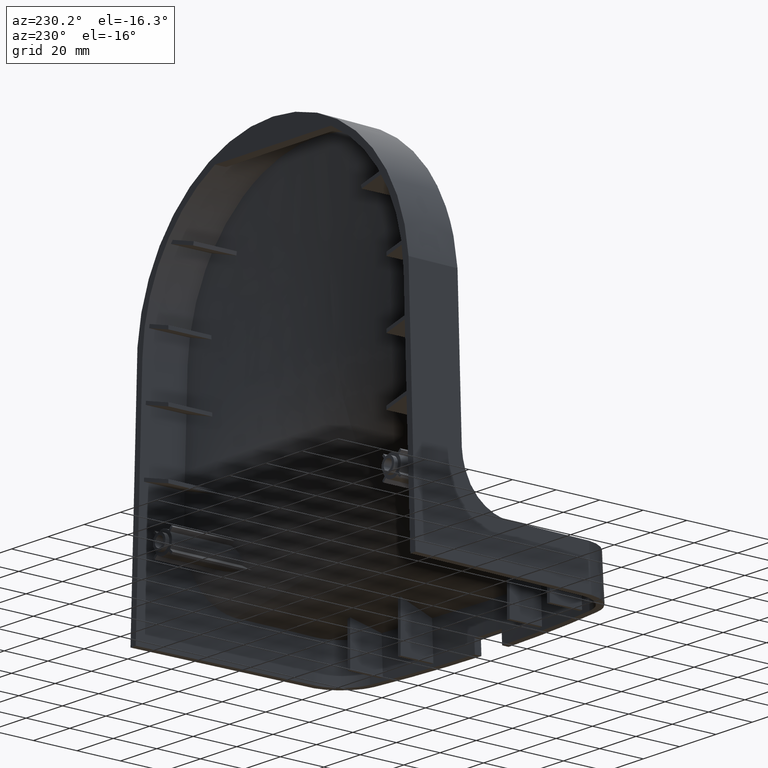
[diagram: clean part render]
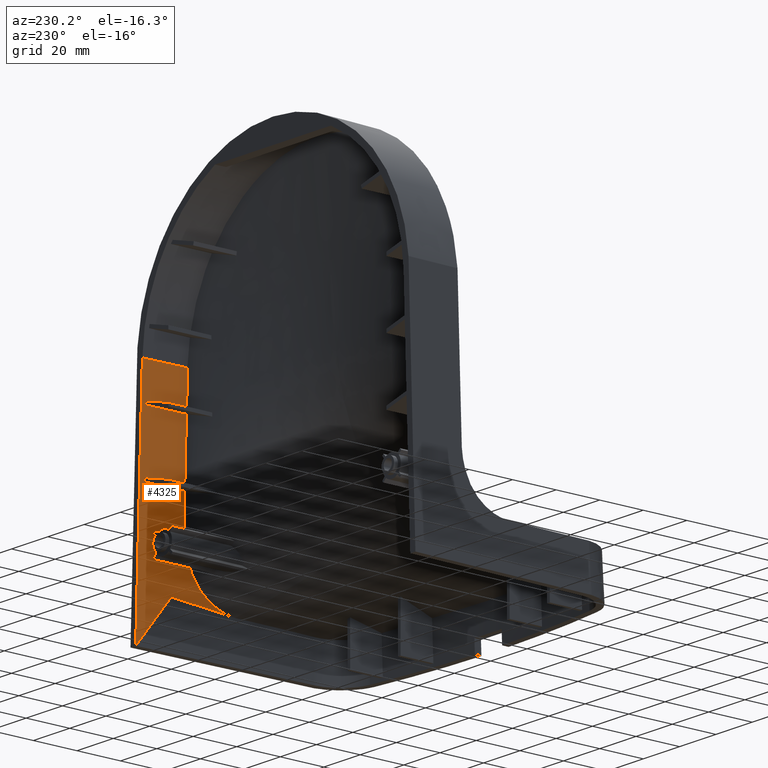
[diagram: same view with one face highlighted and labeled with its STEP entity id]
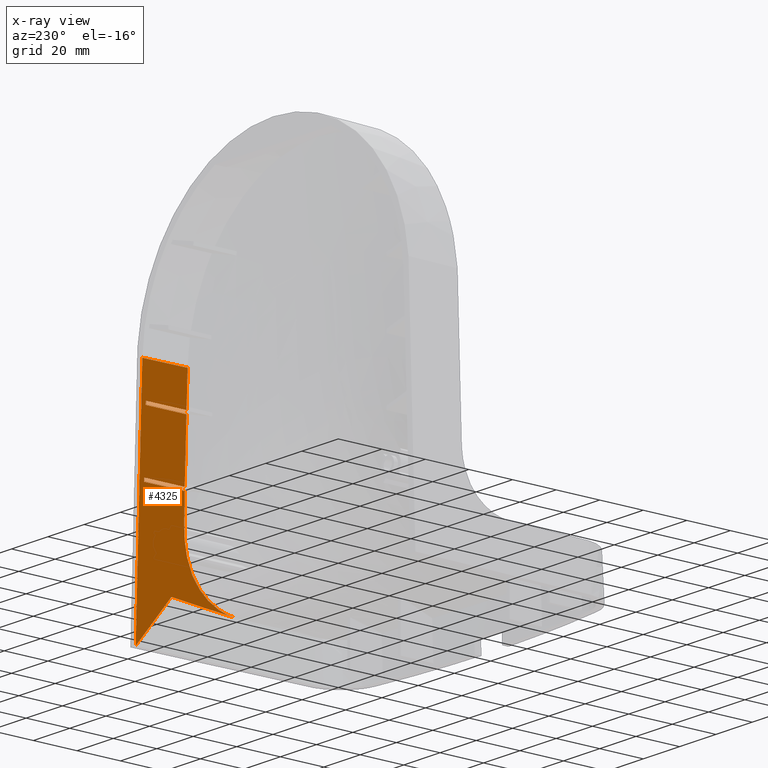
[diagram: x-ray of the same camera — body ghosted, the highlighted face saturated]
A machine part, auxiliary view. The second image highlights one B-rep face of the part: STEP entity #4325.
The next image is the same camera in x-ray: the body ghosted, the highlighted face saturated — about 0% of this face is hidden behind the body in this view.
In plain terms, the highlighted planar face has unit normal (0.999, -0.0262, 0.0349).
Its self-contained STEP definition (entity closure, byte-faithful):
#1 = CARTESIAN_POINT ( 'NONE',  ( 73.76462598726511999, -21.88662094457261986, 36.77296655947260007 ) ) ;
#349 = CARTESIAN_POINT ( 'NONE',  ( 73.20035801954453802, -20.30659595327802336, 54.11282649913669474 ) ) ;
#631 = CARTESIAN_POINT ( 'NONE',  ( 73.03038098130991784, -20.25514864893082390, 59.02270921125465009 ) ) ;
#915 = CARTESIAN_POINT ( 'NONE',  ( 73.26205397358836535, -20.33508236011132553, 52.32392751737363312 ) ) ;
#1191 = CARTESIAN_POINT ( 'NONE',  ( 73.19731675728644404, -20.30534065550454770, 54.20092586160970427 ) ) ;
#1379 = CARTESIAN_POINT ( 'NONE',  ( 72.91010439406188937, -20.23994834460830816, 62.47880377114547912 ) ) ;
#1466 = CARTESIAN_POINT ( 'NONE',  ( 72.99443650903688763, -20.24976810685724971, 60.05647996590990090 ) ) ;
#1472 = CARTESIAN_POINT ( 'NONE',  ( 71.94378532456100572, -20.28098521707368462, 90.11977045705954481 ) ) ;
#1503 = VECTOR ( 'NONE', #39204, 1000.000000000000114 ) ;
#1644 = CARTESIAN_POINT ( 'NONE',  ( 73.77776612269659040, -22.02066736879470099, 36.29610695329699865 ) ) ;
#1651 = CARTESIAN_POINT ( 'NONE',  ( 72.71241207067622270, -20.23914557905390765, 68.14057354977539660 ) ) ;
#1741 = CARTESIAN_POINT ( 'NONE',  ( 73.64356480695457208, -21.01905161975148673, 40.88048180032358658 ) ) ;
#1931 = CARTESIAN_POINT ( 'NONE',  ( 72.78684072310592512, -20.23698409484097027, 66.01083762025155011 ) ) ;
#2020 = CARTESIAN_POINT ( 'NONE',  ( 73.50125927332469189, -20.52584033895417903, 45.33512343868451211 ) ) ;
#2301 = CARTESIAN_POINT ( 'NONE',  ( 73.48806614794398229, -20.50392845531932906, 45.72826477557315883 ) ) ;
#2366 = CARTESIAN_POINT ( 'NONE',  ( 69.89653007941249996, -101.9218705068103930, 87.48839421542770367 ) ) ;
#2575 = CARTESIAN_POINT ( 'NONE',  ( 73.60345672573185993, -20.82507812437275874, 42.18484029578209515 ) ) ;
#2763 = CARTESIAN_POINT ( 'NONE',  ( 72.24872186979459343, -20.26314585780043132, 81.40091560764929568 ) ) ;
#2847 = CARTESIAN_POINT ( 'NONE',  ( 73.67604241346749916, -21.20834194243344584, 39.81718760961898340 ) ) ;
#3027 = CARTESIAN_POINT ( 'NONE',  ( 74.00869484867378389, -32.61751001371372638, 21.73211065413905274 ) ) ;
#3234 = DIRECTION ( 'NONE',  ( 0.02594961566332840142, 0.9996390702422679464, 0.006953178560886679946 ) ) ;
#3313 = CARTESIAN_POINT ( 'NONE',  ( 72.24781747678083832, -20.26317080771234913, 81.42679531454666630 ) ) ;
#3515 = VERTEX_POINT ( 'NONE', #27525 ) ;
#3517 = LINE ( 'NONE', #20764, #40371 ) ;
#3576 = VECTOR ( 'NONE', #37472, 1000.000000000000114 ) ;
#3596 = CARTESIAN_POINT ( 'NONE',  ( 72.01596535532648602, -20.27633339592315309, 88.05629518601890027 ) ) ;
#4315 = CARTESIAN_POINT ( 'NONE',  ( 73.41583272113409464, -2.000000000000000000, 61.68250591909999514 ) ) ;
#4325 = ADVANCED_FACE ( 'NONE', ( #17665 ), #22729, .F. ) ;
#5168 = CARTESIAN_POINT ( 'NONE',  ( 73.19421060364014409, -20.30406793340108962, 54.29089846319644153 ) ) ;
#5451 = CARTESIAN_POINT ( 'NONE',  ( 73.27485157129414972, -20.34171925556226412, 51.95246743405099465 ) ) ;
#5730 = CARTESIAN_POINT ( 'NONE',  ( 71.42361993796279762, -20.30922695712819959, 104.9941677681199934 ) ) ;
#5906 = CARTESIAN_POINT ( 'NONE',  ( 72.74962353694735384, -20.23781259972706081, 67.07597674266560261 ) ) ;
#5995 = CARTESIAN_POINT ( 'NONE',  ( 73.43824380662226758, -20.45079105480560244, 47.20197175662125488 ) ) ;
#6175 = CARTESIAN_POINT ( 'NONE',  ( 73.89292011228569379, -41.50630680694780494, 18.37798990210911043 ) ) ;
#6272 = CARTESIAN_POINT ( 'NONE',  ( 73.45637777163136661, -20.46544073985819168, 46.66644869149447317 ) ) ;
#6513 = CARTESIAN_POINT ( 'NONE',  ( 72.99443650903688763, -20.24976810685724971, 60.05647996590990090 ) ) ;
#6553 = CARTESIAN_POINT ( 'NONE',  ( 73.43230050937798126, -20.44624083596780650, 47.37502165385103581 ) ) ;
#6559 = EDGE_CURVE ( 'NONE', #10847, #30188, #33511, .T. ) ;
#6560 = CARTESIAN_POINT ( 'NONE',  ( 71.72350209762956297, -20.29720552120201305, 96.41568625787279245 ) ) ;
#6829 = CARTESIAN_POINT ( 'NONE',  ( 73.43495898339926953, -20.44827088207827259, 47.29773999748731939 ) ) ;
#6834 = CARTESIAN_POINT ( 'NONE',  ( 71.69536260401166317, -20.29932450110785069, 97.21990600339837840 ) ) ;
#6835 = LINE ( 'NONE', #32562, #31292 ) ;
#7006 = CARTESIAN_POINT ( 'NONE',  ( 73.83806294704270101, -44.04682706089494815, 18.07239217033429668 ) ) ;
#7086 = ORIENTED_EDGE ( 'NONE', *, *, #41415, .T. ) ;
#7102 = CARTESIAN_POINT ( 'NONE',  ( 73.46697296451998227, -20.47540119445368134, 46.35550873408246986 ) ) ;
#7153 = CARTESIAN_POINT ( 'NONE',  ( 74.49841822890140008, -15.44450179351195018, 20.59358398844534932 ) ) ;
#7293 = CARTESIAN_POINT ( 'NONE',  ( 72.25188727084227480, -20.26305755654147234, 81.31033663603768957 ) ) ;
#7376 = CARTESIAN_POINT ( 'NONE',  ( 73.71916467350908420, -21.50751412258557949, 38.36207799580297717 ) ) ;
#7649 = CARTESIAN_POINT ( 'NONE',  ( 73.71140865675423015, -21.45066211656299160, 38.62429632537202195 ) ) ;
#7678 = CARTESIAN_POINT ( 'NONE',  ( 70.87431162518140582, -101.9218705068103930, 59.48839421542759709 ) ) ;
#8215 = CARTESIAN_POINT ( 'NONE',  ( 73.69429920228978403, -21.32913373415654945, 39.20516735190700786 ) ) ;
#8493 = CARTESIAN_POINT ( 'NONE',  ( 73.73069355166789762, -21.59708619098306315, 37.96431077950914101 ) ) ;
#8778 = VECTOR ( 'NONE', #27294, 1000.000000000000000 ) ;
#9131 = CARTESIAN_POINT ( 'NONE',  ( 73.41879156698372810, -20.43586210070134257, 47.77053308976126544 ) ) ;
#9145 = DIRECTION ( 'NONE',  ( -0.03489949670250123287, 0.000000000000000000, 0.9993908270190956511 ) ) ;
#9517 = LINE ( 'NONE', #51646, #1503 ) ;
#9590 = CARTESIAN_POINT ( 'NONE',  ( 73.46818196618779950, -2.000000000000000000, 60.18341967857130470 ) ) ;
#9687 = CARTESIAN_POINT ( 'NONE',  ( 73.40498705879012675, -20.42573735812917235, 48.16373053927134151 ) ) ;
#9968 = CARTESIAN_POINT ( 'NONE',  ( 73.40641902431450205, -20.42671682323996407, 48.12487928182082442 ) ) ;
#10227 = ORIENTED_EDGE ( 'NONE', *, *, #11174, .T. ) ;
#10241 = CARTESIAN_POINT ( 'NONE',  ( 73.40299093419217513, -20.42436649571434160, 48.21812655467960695 ) ) ;
#10247 = CARTESIAN_POINT ( 'NONE',  ( 71.80538610674273059, -20.29107179109952952, 94.07543731651765029 ) ) ;
#10420 = CARTESIAN_POINT ( 'NONE',  ( 73.98379063752801699, -26.90595493924559989, 26.73078942817391379 ) ) ;
#10427 = CARTESIAN_POINT ( 'NONE',  ( 72.72079363732336788, -20.23880402355147723, 67.90081316156765467 ) ) ;
#10515 = CARTESIAN_POINT ( 'NONE',  ( 73.58440925796911358, -20.74982844515403713, 42.78716809800278043 ) ) ;
#10706 = CARTESIAN_POINT ( 'NONE',  ( 72.94225801736989467, -20.24319029239810064, 61.55561195968039812 ) ) ;
#10781 = EDGE_LOOP ( 'NONE', ( #7086, #22166, #54695, #26442, #10227, #33212, #24183, #31780, #54731, #43479, #40262, #44699, #34161, #20309 ) ) ;
#10797 = CARTESIAN_POINT ( 'NONE',  ( 73.45259980591588089, -20.46229755736676381, 46.77255897152863895 ) ) ;
#10847 = VERTEX_POINT ( 'NONE', #4315 ) ;
#10984 = CARTESIAN_POINT ( 'NONE',  ( 73.95708590103014046, -37.78867161415419673, 19.32995213769388343 ) ) ;
#11078 = CARTESIAN_POINT ( 'NONE',  ( 73.64915974432972234, -21.04847229773171691, 40.70458978845954334 ) ) ;
#11084 = CARTESIAN_POINT ( 'NONE',  ( 71.70108767381216808, -20.29889300267910812, 97.05628521805130049 ) ) ;
#11174 = EDGE_CURVE ( 'NONE', #51036, #33319, #54484, .T. ) ;
#11351 = CARTESIAN_POINT ( 'NONE',  ( 73.62449244828330563, -20.92109013938359752, 41.49775268472212986 ) ) ;
#11485 = CARTESIAN_POINT ( 'NONE',  ( 75.47779113412190100, -2.000000000000000000, 2.635742545940975123 ) ) ;
#11629 = CARTESIAN_POINT ( 'NONE',  ( 73.64947466407178922, -21.05021522954906743, 40.69433013911076102 ) ) ;
#11903 = CARTESIAN_POINT ( 'NONE',  ( 73.75089572659734927, -21.76212759208629777, 37.26030841040154229 ) ) ;
#12294 = LINE ( 'NONE', #42245, #31373 ) ;
#12399 = VERTEX_POINT ( 'NONE', #38965 ) ;
#12742 = CARTESIAN_POINT ( 'NONE',  ( 73.69595781536895629, -21.34328926550225702, 39.13600125846345890 ) ) ;
#13161 = CARTESIAN_POINT ( 'NONE',  ( 72.01596535532648602, -20.27633339592315309, 88.05629518601890027 ) ) ;
#13283 = CARTESIAN_POINT ( 'NONE',  ( 73.95167504426791538, -25.39175706130746590, 28.78659833544623581 ) ) ;
#13381 = CARTESIAN_POINT ( 'NONE',  ( 73.41241313882416364, -20.43099739909022361, 47.95711244672931883 ) ) ;
#13525 = EDGE_CURVE ( 'NONE', #43972, #15976, #41934, .T. ) ;
#13570 = CARTESIAN_POINT ( 'NONE',  ( 71.95511179436201132, 0.000000000000000000, 105.0127278727239855 ) ) ;
#13665 = CARTESIAN_POINT ( 'NONE',  ( 73.06560911897923916, -20.26256813980952032, 58.00781742073993996 ) ) ;
#13678 = CARTESIAN_POINT ( 'NONE',  ( 75.47779113412190100, -2.000000000000000000, 2.635742545940975123 ) ) ;
#13937 = CARTESIAN_POINT ( 'NONE',  ( 73.11736004245902620, -20.27687393776201219, 56.51393343992604912 ) ) ;
#14266 = DIRECTION ( 'NONE',  ( 0.000000000000000000, -0.7998756785179319539, -0.6001657262085847711 ) ) ;
#14493 = CARTESIAN_POINT ( 'NONE',  ( 73.19938612774872411, -20.30619336235696082, 54.14098128953309441 ) ) ;
#14769 = CARTESIAN_POINT ( 'NONE',  ( 73.69078528836509179, -21.30513087443339515, 39.32375137489287908 ) ) ;
#15046 = CARTESIAN_POINT ( 'NONE',  ( 73.55731935633106389, -20.65933939170806966, 43.62788549194925025 ) ) ;
#15231 = CARTESIAN_POINT ( 'NONE',  ( 73.86647667324734812, -42.76951132360815677, 18.18741855816962172 ) ) ;
#15328 = CARTESIAN_POINT ( 'NONE',  ( 73.45108669245460931, -20.46036727993015703, 46.83597946496774256 ) ) ;
#15599 = CARTESIAN_POINT ( 'NONE',  ( 73.65740032859019948, -21.09440725430056318, 40.43460467405348169 ) ) ;
#15783 = CARTESIAN_POINT ( 'NONE',  ( 72.14464007149808822, -20.26827029719766671, 84.37758335717545322 ) ) ;
#15868 = CARTESIAN_POINT ( 'NONE',  ( 73.68771344638516041, -21.28440766377681825, 39.42712423994260718 ) ) ;
#15945 = CARTESIAN_POINT ( 'NONE',  ( 75.62223705809519458, 4.778122342230520046E-11, 3.204728149519554977E-10 ) ) ;
#15976 = VERTEX_POINT ( 'NONE', #23601 ) ;
#16055 = CARTESIAN_POINT ( 'NONE',  ( 72.24769193328982908, -20.26317426113963194, 81.43038781856424180 ) ) ;
#17611 = CARTESIAN_POINT ( 'NONE',  ( 73.33832802076206292, -20.37899652957403518, 50.10051710551808668 ) ) ;
#17665 = FACE_OUTER_BOUND ( 'NONE', #10781, .T. ) ;
#17694 = VERTEX_POINT ( 'NONE', #32193 ) ;
#17745 = EDGE_CURVE ( 'NONE', #17694, #33660, #34293, .T. ) ;
#17894 = CARTESIAN_POINT ( 'NONE',  ( 73.15976385694067119, -20.29090434536581355, 55.28800929313852208 ) ) ;
#17927 = B_SPLINE_CURVE_WITH_KNOTS ( 'NONE', 3,
 ( #10706, #1379, #53126, #1931, #5906, #23140, #10427, #28486, #40389, #1651, #18911, #27658, #36154, #53676, #27937, #45181, #21124, #29312, #55325, #28763, #7293, #46563, #2763, #50543, #20014, #3313, #16055, #33570, #15783, #3596 ),
 .UNSPECIFIED., .F., .F.,
 ( 4, 1, 1, 1, 1, 1, 1, 1, 2, 2, 2, 1, 1, 1, 1, 1, 1, 1, 1, 1, 2, 2, 4 ),
 ( 0.000000000000000000, 0.1250000000004849732, 0.1875000000007282785, 0.2187500000008506529, 0.2343750000009125756, 0.2421875000009428569, 0.2460937500009579837, 0.2480468750009655887, 0.2490234375009686973, 0.2500000000009718337, 0.5000000000015396573, 0.6250000000018236523, 0.6875000000019655388, 0.7187500000020372593, 0.7343750000020723423, 0.7421875000020906610, 0.7460937500020998758, 0.7480468750021052049, 0.7490234375021070923, 0.7495117187521072033, 0.7497558593771080915, 0.7500000000021088686, 1.000000000000000000 ),
 .UNSPECIFIED. ) ;
#18172 = CARTESIAN_POINT ( 'NONE',  ( 73.30011924060954698, -20.35579650218377168, 51.21860704478359594 ) ) ;
#18442 = CARTESIAN_POINT ( 'NONE',  ( 73.28754607877775129, -20.34870323933588310, 51.58381251966184777 ) ) ;
#18658 = VERTEX_POINT ( 'NONE', #13161 ) ;
#18720 = CARTESIAN_POINT ( 'NONE',  ( 73.13442892888654967, -20.28216895997802638, 56.02071385526686953 ) ) ;
#18904 = CARTESIAN_POINT ( 'NONE',  ( 73.84564247812812710, -22.71698788794222779, 33.82991661752050305 ) ) ;
#18911 = CARTESIAN_POINT ( 'NONE',  ( 72.71171082885680903, -20.23917516300382857, 68.16063229058656248 ) ) ;
#18999 = CARTESIAN_POINT ( 'NONE',  ( 73.64947631982464316, -21.05022344857158245, 40.69428061044857969 ) ) ;
#19196 = CARTESIAN_POINT ( 'NONE',  ( 73.83806294704270101, -44.04682706089494815, 18.07239217033429668 ) ) ;
#19274 = CARTESIAN_POINT ( 'NONE',  ( 73.69231190199725745, -21.31552059334831029, 39.27227650771320100 ) ) ;
#19457 = CARTESIAN_POINT ( 'NONE',  ( 73.92729037245337054, -39.63601462387360641, 18.79707908864585519 ) ) ;
#19553 = CARTESIAN_POINT ( 'NONE',  ( 73.56599774286202376, -20.68576001483105031, 43.36200440512612886 ) ) ;
#19754 = CARTESIAN_POINT ( 'NONE',  ( 74.49841822890140008, -15.44450179351195018, 20.59358398844534932 ) ) ;
#19830 = CARTESIAN_POINT ( 'NONE',  ( 73.49218267509705527, -20.51036681872238532, 45.60591811928414785 ) ) ;
#20014 = CARTESIAN_POINT ( 'NONE',  ( 72.24796820874632886, -20.26316665718611887, 81.42248203004361073 ) ) ;
#20098 = CARTESIAN_POINT ( 'NONE',  ( 73.68149602755293870, -21.24320111173466330, 39.63557078012083679 ) ) ;
#20210 = DIRECTION ( 'NONE',  ( 0.02594961566332840142, 0.9996390702422679464, 0.006953178560886880306 ) ) ;
#20309 = ORIENTED_EDGE ( 'NONE', *, *, #32222, .F. ) ;
#20368 = CARTESIAN_POINT ( 'NONE',  ( 73.69372389755710628, -21.32518434631276349, 39.22460430949259802 ) ) ;
#20604 = VECTOR ( 'NONE', #9145, 1000.000000000000114 ) ;
#20646 = CARTESIAN_POINT ( 'NONE',  ( 73.69382499580271428, -21.32587826442437162, 39.22118876739896365 ) ) ;
#20764 = CARTESIAN_POINT ( 'NONE',  ( 70.82196238012770095, -101.9218705068103930, 60.98748045595630174 ) ) ;
#21124 = CARTESIAN_POINT ( 'NONE',  ( 72.31520362809062874, -20.26097227304572002, 79.49875803067477875 ) ) ;
#21209 = CARTESIAN_POINT ( 'NONE',  ( 73.71402797182709321, -21.46941101097988280, 38.53726120683167977 ) ) ;
#22166 = ORIENTED_EDGE ( 'NONE', *, *, #43866, .F. ) ;
#22729 = PLANE ( 'NONE',  #31558 ) ;
#23140 = CARTESIAN_POINT ( 'NONE',  ( 72.73049093815089350, -20.23843830654717024, 67.62339320506781348 ) ) ;
#23229 = CARTESIAN_POINT ( 'NONE',  ( 73.45398179813113870, -20.46329400433854317, 46.73702485810984086 ) ) ;
#23448 = EDGE_CURVE ( 'NONE', #30188, #29338, #51495, .T. ) ;
#23506 = CARTESIAN_POINT ( 'NONE',  ( 73.64870533175266587, -21.04598015576385350, 40.71928951864441615 ) ) ;
#23601 = CARTESIAN_POINT ( 'NONE',  ( 72.43805117536510352, -2.000000000000000000, 89.68250591909999514 ) ) ;
#23783 = CARTESIAN_POINT ( 'NONE',  ( 73.59967295384760178, -20.80937660924998411, 42.30499656243139128 ) ) ;
#23789 = CARTESIAN_POINT ( 'NONE',  ( 71.70864552270860770, -20.29832366223334361, 96.84028393244339838 ) ) ;
#24056 = CARTESIAN_POINT ( 'NONE',  ( 73.51951360227003818, -20.56072180356078860, 44.78620643293276515 ) ) ;
#24061 = CARTESIAN_POINT ( 'NONE',  ( 71.69399235856344887, -20.29942780428644866, 97.25906718828454700 ) ) ;
#24183 = ORIENTED_EDGE ( 'NONE', *, *, #47416, .T. ) ;
#24327 = CARTESIAN_POINT ( 'NONE',  ( 73.66498250858907682, -21.13937651263622897, 40.18443408227129510 ) ) ;
#24504 = CARTESIAN_POINT ( 'NONE',  ( 73.97688164227791674, -26.50933642749694030, 27.22622945889587598 ) ) ;
#24598 = CARTESIAN_POINT ( 'NONE',  ( 73.71475221312718418, -21.47472443737753878, 38.51275957206841127 ) ) ;
#24876 = CARTESIAN_POINT ( 'NONE',  ( 73.70908084586162090, -21.43447006002441313, 38.70005229758015730 ) ) ;
#25723 = CARTESIAN_POINT ( 'NONE',  ( 73.73498536769029954, -21.63172627480037491, 37.81506546773567123 ) ) ;
#26442 = ORIENTED_EDGE ( 'NONE', *, *, #31901, .F. ) ;
#26920 = CARTESIAN_POINT ( 'NONE',  ( 73.38903956714497667, -20.41462413638726758, 48.60683235266650826 ) ) ;
#27195 = CARTESIAN_POINT ( 'NONE',  ( 73.42993200766527195, -20.44442856567490097, 47.44400324842207084 ) ) ;
#27294 = DIRECTION ( 'NONE',  ( 0.02616100201824156021, 0.9996573249755573709, 0.0009135623211521744398 ) ) ;
#27517 = CARTESIAN_POINT ( 'NONE',  ( 71.42361993796279762, -20.30922695712819959, 104.9941677681199934 ) ) ;
#27525 = CARTESIAN_POINT ( 'NONE',  ( 73.77776612269659040, -22.02066736879470099, 36.29610695329699865 ) ) ;
#27658 = CARTESIAN_POINT ( 'NONE',  ( 72.71131058571778283, -20.23919213871883471, 68.17208101720864022 ) ) ;
#27748 = CARTESIAN_POINT ( 'NONE',  ( 73.43189979337957141, -20.44593456866356007, 47.38668005968651187 ) ) ;
#27930 = CARTESIAN_POINT ( 'NONE',  ( 73.96565560332170719, -37.18566099081153453, 19.53700117021458027 ) ) ;
#27937 = CARTESIAN_POINT ( 'NONE',  ( 72.44068604829574554, -20.25470705237764690, 75.91011260705431596 ) ) ;
#28027 = CARTESIAN_POINT ( 'NONE',  ( 73.57971282589497264, -20.73287589210334048, 42.93446036447678438 ) ) ;
#28033 = CARTESIAN_POINT ( 'NONE',  ( 71.75217875598394812, -20.29505139858013862, 95.59611049531291371 ) ) ;
#28302 = CARTESIAN_POINT ( 'NONE',  ( 73.45776958564921699, -20.46673175792495414, 46.62556265475279815 ) ) ;
#28486 = CARTESIAN_POINT ( 'NONE',  ( 72.71591223655231317, -20.23900009795218580, 68.04045107114225743 ) ) ;
#28571 = CARTESIAN_POINT ( 'NONE',  ( 73.64934938206158677, -21.04952068501420470, 40.69841705023615219 ) ) ;
#28666 = EDGE_CURVE ( 'NONE', #33319, #30078, #35786, .T. ) ;
#28763 = CARTESIAN_POINT ( 'NONE',  ( 72.25610786732289625, -20.26293745665309842, 81.18956468001391613 ) ) ;
#28847 = CARTESIAN_POINT ( 'NONE',  ( 73.45710937723816869, -20.46611685514230317, 46.64495103833247214 ) ) ;
#29312 = CARTESIAN_POINT ( 'NONE',  ( 72.28143292821440014, -20.26216010028885606, 80.46493309086991985 ) ) ;
#29338 = VERTEX_POINT ( 'NONE', #6513 ) ;
#29397 = CARTESIAN_POINT ( 'NONE',  ( 73.72807198829323738, -21.57636345240805298, 38.05510369951900884 ) ) ;
#29684 = CARTESIAN_POINT ( 'NONE',  ( 73.72277274421199422, -21.53499311092356905, 38.23813311790124914 ) ) ;
#29967 = CARTESIAN_POINT ( 'NONE',  ( 73.71506458694074126, -21.47703167243227540, 38.50213958577728590 ) ) ;
#30078 = VERTEX_POINT ( 'NONE', #13570 ) ;
#30188 = VERTEX_POINT ( 'NONE', #9590 ) ;
#30238 = EDGE_CURVE ( 'NONE', #3515, #17694, #37734, .T. ) ;
#31163 = CARTESIAN_POINT ( 'NONE',  ( 73.40129271929589549, -20.42319227979556118, 48.26475810636513586 ) ) ;
#31292 = VECTOR ( 'NONE', #50355, 1000.000000000000227 ) ;
#31373 = VECTOR ( 'NONE', #20210, 1000.000000000000000 ) ;
#31440 = CARTESIAN_POINT ( 'NONE',  ( 73.39791301027578641, -20.42084550258012854, 48.35802986923518176 ) ) ;
#31558 = AXIS2_PLACEMENT_3D ( 'NONE', #39983, #35740, #14266 ) ;
#31719 = CARTESIAN_POINT ( 'NONE',  ( 73.32148549985859631, -20.36823113573550614, 50.59784373831321602 ) ) ;
#31780 = ORIENTED_EDGE ( 'NONE', *, *, #51514, .F. ) ;
#31901 = EDGE_CURVE ( 'NONE', #51036, #15976, #12294, .T. ) ;
#31993 = CARTESIAN_POINT ( 'NONE',  ( 73.69307287337819901, -21.32072225039472357, 39.24659183253832850 ) ) ;
#32193 = CARTESIAN_POINT ( 'NONE',  ( 73.83806294704270101, -44.04682706089494815, 18.07239217033429668 ) ) ;
#32222 = EDGE_CURVE ( 'NONE', #12399, #10847, #3517, .T. ) ;
#32273 = CARTESIAN_POINT ( 'NONE',  ( 73.44647846868571150, -20.45718520883409752, 46.95964632874861167 ) ) ;
#32459 = CARTESIAN_POINT ( 'NONE',  ( 74.01248566157447328, -30.51868548915010493, 23.19835388348881722 ) ) ;
#32556 = CARTESIAN_POINT ( 'NONE',  ( 73.50643676197354637, -20.53544348451989521, 45.17986184133786054 ) ) ;
#32562 = CARTESIAN_POINT ( 'NONE',  ( 71.95653898182619912, -50.37723078458619597, 67.17262537739310346 ) ) ;
#32736 = CARTESIAN_POINT ( 'NONE',  ( 74.01270129626240646, -31.02614282846791838, 22.81142161534532775 ) ) ;
#32829 = CARTESIAN_POINT ( 'NONE',  ( 73.49825059681091943, -20.52058867497104799, 45.42496110137649623 ) ) ;
#33100 = CARTESIAN_POINT ( 'NONE',  ( 73.64774944950410429, -21.04081297854942179, 40.74987627966820014 ) ) ;
#33212 = ORIENTED_EDGE ( 'NONE', *, *, #28666, .T. ) ;
#33319 = VERTEX_POINT ( 'NONE', #27517 ) ;
#33380 = CARTESIAN_POINT ( 'NONE',  ( 73.71259867191928095, -21.45906247322885463, 38.58515189140199197 ) ) ;
#33511 = LINE ( 'NONE', #11485, #3576 ) ;
#33570 = CARTESIAN_POINT ( 'NONE',  ( 72.22187386803369691, -20.26388414979459895, 82.16918782818963507 ) ) ;
#33596 = CARTESIAN_POINT ( 'NONE',  ( 71.89521694446027311, -20.28442712719091290, 91.50800434422599494 ) ) ;
#33657 = CARTESIAN_POINT ( 'NONE',  ( 73.69361546381693984, -21.32444046092624035, 39.22826727612982722 ) ) ;
#33660 = VERTEX_POINT ( 'NONE', #7153 ) ;
#34161 = ORIENTED_EDGE ( 'NONE', *, *, #6559, .F. ) ;
#34222 = CARTESIAN_POINT ( 'NONE',  ( 73.73327400648044261, -21.61786326312880746, 37.87461617340684228 ) ) ;
#34293 = B_SPLINE_CURVE_WITH_KNOTS ( 'NONE', 3,
 ( #19196, #54507, #36719, #19754 ),
 .UNSPECIFIED., .F., .F.,
 ( 4, 4 ),
 ( 0.000000000000000000, 1.000000000000000000 ),
 .UNSPECIFIED. ) ;
#34854 = CARTESIAN_POINT ( 'NONE',  ( 73.40598887002981598, -20.42642296245060862, 48.13653438250055672 ) ) ;
#35145 = CARTESIAN_POINT ( 'NONE',  ( 73.18694821895559244, -20.30114255779531973, 54.50122472121778117 ) ) ;
#35419 = CARTESIAN_POINT ( 'NONE',  ( 73.36338446358045928, -20.39640106778375284, 49.35369012787579379 ) ) ;
#35689 = CARTESIAN_POINT ( 'NONE',  ( 73.42237603761061848, -20.43861944147269227, 47.66518843083953527 ) ) ;
#35740 = DIRECTION ( 'NONE',  ( 0.9990483607430191704, -0.02617694830787320459, 0.03488753751661570479 ) ) ;
#35786 = LINE ( 'NONE', #49346, #8778 ) ;
#35972 = CARTESIAN_POINT ( 'NONE',  ( 71.69454068810246383, -20.29938646467585883, 97.24339610281523960 ) ) ;
#36147 = CARTESIAN_POINT ( 'NONE',  ( 73.90116200888665787, -23.70640512416119705, 31.49766201221036610 ) ) ;
#36154 = CARTESIAN_POINT ( 'NONE',  ( 72.63380362412937075, -20.24249310663045520, 70.38911320579131825 ) ) ;
#36240 = CARTESIAN_POINT ( 'NONE',  ( 73.50716979305335030, -20.53684419306348730, 45.15782093646901529 ) ) ;
#36518 = CARTESIAN_POINT ( 'NONE',  ( 73.43130219423170502, -20.44547761538386865, 47.40407392053359814 ) ) ;
#36719 = CARTESIAN_POINT ( 'NONE',  ( 74.27811654229307692, -24.97860541715869687, 19.75318031399139329 ) ) ;
#36800 = CARTESIAN_POINT ( 'NONE',  ( 73.61548806512435306, -20.87572109273974874, 41.80231209519362778 ) ) ;
#37075 = CARTESIAN_POINT ( 'NONE',  ( 73.60282352035204667, -20.82242917875372257, 42.20496219713159292 ) ) ;
#37081 = CARTESIAN_POINT ( 'NONE',  ( 71.69367266024217145, -20.29945190794697751, 97.26820406483811610 ) ) ;
#37343 = CARTESIAN_POINT ( 'NONE',  ( 73.59164530032218465, -20.77738292840280110, 42.55908201276169223 ) ) ;
#37411 = DIRECTION ( 'NONE',  ( -0.02594961566332840142, -0.9996390702422679464, -0.006953178560886880306 ) ) ;
#37472 = DIRECTION ( 'NONE',  ( 0.03489949670250123287, 0.000000000000000000, -0.9993908270190956511 ) ) ;
#37699 = VECTOR ( 'NONE', #37411, 1000.000000000000000 ) ;
#37734 = B_SPLINE_CURVE_WITH_KNOTS ( 'NONE', 3,
 ( #1644, #18904, #36147, #13283, #49150, #24504, #10420, #49713, #45174, #32459, #32736, #44894, #3027, #40661, #53668, #27930, #10984, #45728, #19457, #6175, #15231, #7006 ),
 .UNSPECIFIED., .F., .F.,
 ( 4, 2, 2, 2, 2, 2, 2, 2, 2, 2, 4 ),
 ( 7.757919228897728493E-18, 0.007599422965785704656, 0.009499278707232126917, 0.01139913444867854918, 0.01519884593157139370, 0.01709870167301781943, 0.01899855741446425036, 0.02279826889735709489, 0.02469812463880352235, 0.02659798038024995676, 0.03039769186314282209 ),
 .UNSPECIFIED. ) ;
#37896 = CARTESIAN_POINT ( 'NONE',  ( 73.71527326919716927, -21.47857653381788978, 38.49503307806229202 ) ) ;
#38737 = VECTOR ( 'NONE', #54886, 1000.000000000000227 ) ;
#38965 = CARTESIAN_POINT ( 'NONE',  ( 72.94225801736989467, -20.24319029239810064, 61.55561195968039812 ) ) ;
#39095 = CARTESIAN_POINT ( 'NONE',  ( 73.16816423589339990, -20.29394768278793393, 55.04496177482666042 ) ) ;
#39204 = DIRECTION ( 'NONE',  ( 0.03489949670250123287, 0.000000000000000000, -0.9993908270190956511 ) ) ;
#39437 = VERTEX_POINT ( 'NONE', #15945 ) ;
#39983 = CARTESIAN_POINT ( 'NONE',  ( 71.95716694420309523, 0.07853084492361959990, 105.0127996401376009 ) ) ;
#39997 = LINE ( 'NONE', #2366, #37699 ) ;
#40262 = ORIENTED_EDGE ( 'NONE', *, *, #45631, .F. ) ;
#40371 = VECTOR ( 'NONE', #3234, 1000.000000000000227 ) ;
#40389 = CARTESIAN_POINT ( 'NONE',  ( 72.71346334857743443, -20.23910143912718240, 68.11050200876080396 ) ) ;
#40478 = CARTESIAN_POINT ( 'NONE',  ( 73.53314431982158794, -20.59124906851057801, 44.36845651751890074 ) ) ;
#40485 = CARTESIAN_POINT ( 'NONE',  ( 71.96352891982819244, -20.27969217303559901, 89.55535806393830001 ) ) ;
#40661 = CARTESIAN_POINT ( 'NONE',  ( 73.99904467152759935, -34.26548042895683466, 20.77194421367237354 ) ) ;
#40756 = CARTESIAN_POINT ( 'NONE',  ( 73.44137952356470578, -20.45321648875681575, 47.10998487454753558 ) ) ;
#41035 = CARTESIAN_POINT ( 'NONE',  ( 73.60373528688199940, -20.82624658254399463, 42.17598621255672953 ) ) ;
#41311 = CARTESIAN_POINT ( 'NONE',  ( 73.64565478542665744, -21.02975317528117927, 40.81580406179337217 ) ) ;
#41415 = EDGE_CURVE ( 'NONE', #12399, #18658, #17927, .T. ) ;
#41494 = B_SPLINE_CURVE_WITH_KNOTS ( 'NONE', 3,
 ( #1466, #631, #13665, #13937, #18720, #17894, #39095, #48143, #35145, #5168, #1191, #14493, #349, #52388, #47861, #915, #5451, #18442, #48693, #18172, #31719, #17611, #35419, #48970, #26920, #52661, #31440, #31163, #10241, #9687, #34854, #9968, #44441, #52100, #48414, #13381, #9131, #35689, #52933, #27195, #36518, #27748, #6553, #44990, #6829, #5995, #40756, #45824, #49527, #32273, #53765, #50077, #15328, #10797, #23229, #54314, #6272, #28847, #41583, #28302, #7102, #53488, #2301, #19830, #32829, #2020, #45550, #32556, #36240, #50350, #49246, #24056, #40478, #15046, #19553, #28027, #10515, #37343, #45269, #23783, #54584, #37075, #2575, #41035, #36800, #11351, #54046, #49809, #1741, #41311, #33100, #23506, #11078, #28571, #11629, #18999, #15599, #24327, #2847, #20098, #15868, #14769, #19274, #31993, #46374, #33657, #20368, #20646, #8215, #12742, #47216, #46935, #50901, #24876, #7649, #33380, #21209, #24598, #29967, #37896, #42127, #7376, #29684, #29397, #8493, #34222, #25723, #51470, #11903, #1, #42974 ),
 .UNSPECIFIED., .F., .F.,
 ( 4, 2, 2, 2, 1, 1, 2, 2, 2, 1, 2, 2, 2, 1, 2, 2, 1, 1, 1, 2, 2, 2, 1, 1, 1, 1, 2, 2, 1, 2, 2, 2, 2, 2, 1, 2, 2, 2, 2, 1, 1, 1, 2, 2, 2, 2, 2, 1, 1, 1, 2, 2, 2, 2, 1, 1, 1, 1, 2, 2, 2, 1, 1, 1, 1, 1, 1, 2, 2, 2, 2, 2, 1, 1, 1, 2, 2, 2, 1, 2, 2, 4 ),
 ( 0.000000000000000000, 0.1250000000000145717, 0.1875000000000223432, 0.2187500000000266731, 0.2343750000000288380, 0.2421875000000304201, 0.2460937500000316414, 0.2500000000000328071, 0.3125000000000569544, 0.3437500000000686118, 0.3593750000000744405, 0.3750000000000802691, 0.4375000000001036393, 0.4687500000001152411, 0.4843750000001211253, 0.4921875000001240674, 0.4960937500001259548, 0.4980468750001268985, 0.4990234375001278422, 0.4995117187501283418, 0.5000000000001287859, 0.5156250000001814104, 0.5234375000002078338, 0.5273437500002209344, 0.5292968750002274847, 0.5302734375002310374, 0.5307617187502330358, 0.5312500000002351452, 0.5390625000002686740, 0.5429687500002849943, 0.5468750000003013145, 0.5507812500003176348, 0.5546875000003339551, 0.5585937500003503864, 0.5605468750003589351, 0.5615234375003631540, 0.5625000000003673728, 0.5937500000004954925, 0.6093750000005596634, 0.6171875000005916378, 0.6210937500006071810, 0.6230468750006145084, 0.6240234375006186163, 0.6250000000006227241, 0.6875000000008368861, 0.7187500000009439116, 0.7343750000009973133, 0.7421875000010239587, 0.7460937500010372814, 0.7480468750010442758, 0.7490234375010480505, 0.7500000000010519363, 0.7812500000011778356, 0.7968750000012404522, 0.8046875000012717605, 0.8085937500012874146, 0.8105468750012945200, 0.8115234375012988499, 0.8120117187513001822, 0.8125000000013014034, 0.8437500000014254153, 0.8593750000014873658, 0.8671875000015183410, 0.8710937500015342172, 0.8730468750015422108, 0.8740234375015462076, 0.8745117187515480950, 0.8747558593765489832, 0.8750000000015499824, 0.8906250000013397061, 0.8984375000012345680, 0.9023437500011819434, 0.9042968750011560752, 0.9052734375011430856, 0.9057617187511367574, 0.9060058593761335377, 0.9062500000011304291, 0.9218750000009438006, 0.9296875000008509859, 0.9335937500008041345, 0.9375000000007572831, 1.000000000000000000 ),
 .UNSPECIFIED. ) ;
#41583 = CARTESIAN_POINT ( 'NONE',  ( 73.45758672725105498, -20.46656083620396060, 46.63093118770974144 ) ) ;
#41934 = LINE ( 'NONE', #13678, #20604 ) ;
#42127 = CARTESIAN_POINT ( 'NONE',  ( 73.71542506455958232, -21.47970361148589191, 38.48985255301982278 ) ) ;
#42245 = CARTESIAN_POINT ( 'NONE',  ( 69.84418083435869562, -101.9218705068103930, 88.98748045595628753 ) ) ;
#42974 = CARTESIAN_POINT ( 'NONE',  ( 73.77776612269659040, -22.02066736879470099, 36.29610695329699865 ) ) ;
#43479 = ORIENTED_EDGE ( 'NONE', *, *, #30238, .F. ) ;
#43866 = EDGE_CURVE ( 'NONE', #43972, #18658, #39997, .T. ) ;
#43972 = VERTEX_POINT ( 'NONE', #45337 ) ;
#44441 = CARTESIAN_POINT ( 'NONE',  ( 73.40670597344747250, -20.42691273643346861, 48.11710930232422356 ) ) ;
#44447 = CARTESIAN_POINT ( 'NONE',  ( 71.48614695584734591, -20.31157005943127913, 103.2018701616243561 ) ) ;
#44699 = ORIENTED_EDGE ( 'NONE', *, *, #23448, .F. ) ;
#44894 = CARTESIAN_POINT ( 'NONE',  ( 74.01079972671745111, -32.07933770873251689, 22.07563830046153797 ) ) ;
#44990 = CARTESIAN_POINT ( 'NONE',  ( 73.43256381326905569, -20.44644196564052763, 47.36736509971748887 ) ) ;
#45174 = CARTESIAN_POINT ( 'NONE',  ( 74.00844016521267577, -29.05279264726791411, 24.41409597005083043 ) ) ;
#45181 = CARTESIAN_POINT ( 'NONE',  ( 72.38275857762924659, -20.25807769710523942, 77.56640925427375066 ) ) ;
#45269 = CARTESIAN_POINT ( 'NONE',  ( 73.59531118564598273, -20.79169198180133193, 42.44325221083434485 ) ) ;
#45337 = CARTESIAN_POINT ( 'NONE',  ( 72.49040042041890786, -2.000000000000000000, 88.18341967857139707 ) ) ;
#45550 = CARTESIAN_POINT ( 'NONE',  ( 73.50471965456272017, -20.53220382187191717, 45.23142987167332052 ) ) ;
#45555 = CARTESIAN_POINT ( 'NONE',  ( 71.69727635900500218, -20.29918024038451208, 97.16521147293592264 ) ) ;
#45631 = EDGE_CURVE ( 'NONE', #29338, #3515, #41494, .T. ) ;
#45728 = CARTESIAN_POINT ( 'NONE',  ( 73.93788061782346688, -39.01541238711651971, 18.95946674331356974 ) ) ;
#45824 = CARTESIAN_POINT ( 'NONE',  ( 73.44343637124978841, -20.45481226681570419, 47.04949979454057285 ) ) ;
#46374 = CARTESIAN_POINT ( 'NONE',  ( 73.69345277422060292, -21.32332474945990697, 39.23376266812018542 ) ) ;
#46563 = CARTESIAN_POINT ( 'NONE',  ( 72.24977699906645512, -20.26311659296719014, 81.37072261667458406 ) ) ;
#46935 = CARTESIAN_POINT ( 'NONE',  ( 73.70341241235611562, -21.39685280031472203, 38.87846183663433663 ) ) ;
#47216 = CARTESIAN_POINT ( 'NONE',  ( 73.70116092132575147, -21.38137658350403214, 38.95274304799908549 ) ) ;
#47416 = EDGE_CURVE ( 'NONE', #30078, #39437, #9517, .T. ) ;
#47861 = CARTESIAN_POINT ( 'NONE',  ( 73.23632023309737349, -20.32227366024703841, 53.07058765861630434 ) ) ;
#48143 = CARTESIAN_POINT ( 'NONE',  ( 73.18069810774377970, -20.29871083968782841, 54.68217320516393443 ) ) ;
#48414 = CARTESIAN_POINT ( 'NONE',  ( 73.40921152896173396, -20.42862140877259236, 48.04934808599058726 ) ) ;
#48693 = CARTESIAN_POINT ( 'NONE',  ( 73.29598632020686466, -20.35343592420753822, 51.33866593571949721 ) ) ;
#48970 = CARTESIAN_POINT ( 'NONE',  ( 73.37597577460095977, -20.40537356319795492, 48.98016877960125726 ) ) ;
#49150 = CARTESIAN_POINT ( 'NONE',  ( 73.96084398639004576, -25.75282936503194264, 28.25311305813379192 ) ) ;
#49246 = CARTESIAN_POINT ( 'NONE',  ( 73.50796726802172998, -20.53837754127667381, 45.13382747361007574 ) ) ;
#49346 = CARTESIAN_POINT ( 'NONE',  ( 71.95716694420309523, 0.07853084492361959990, 105.0127996401377999 ) ) ;
#49527 = CARTESIAN_POINT ( 'NONE',  ( 73.44440658619114970, -20.45556723752801886, 47.02090083851000202 ) ) ;
#49533 = CARTESIAN_POINT ( 'NONE',  ( 71.96352891982819244, -20.27969217303559901, 89.55535806393830001 ) ) ;
#49713 = CARTESIAN_POINT ( 'NONE',  ( 74.00120792425087757, -28.15057779077071487, 25.29815349700667326 ) ) ;
#49809 = CARTESIAN_POINT ( 'NONE',  ( 73.63905113172563688, -20.99609203189808682, 41.02078659958742435 ) ) ;
#50077 = CARTESIAN_POINT ( 'NONE',  ( 73.45188061792242706, -20.45904339174661146, 46.86900755979129940 ) ) ;
#50350 = CARTESIAN_POINT ( 'NONE',  ( 73.50765783468236236, -20.53778071359271351, 45.14314025622301330 ) ) ;
#50355 = DIRECTION ( 'NONE',  ( 0.04361619879756289953, 0.5994119720342868662, -0.7992514716811091047 ) ) ;
#50543 = CARTESIAN_POINT ( 'NONE',  ( 72.24819430681270660, -20.26316042687215102, 81.41601210330070160 ) ) ;
#50841 = CARTESIAN_POINT ( 'NONE',  ( 71.57608812673480259, -20.30831747030350343, 100.6287325064314047 ) ) ;
#50901 = CARTESIAN_POINT ( 'NONE',  ( 73.70757635641264471, -21.42450269884360736, 38.74715188900351848 ) ) ;
#51036 = VERTEX_POINT ( 'NONE', #40485 ) ;
#51470 = CARTESIAN_POINT ( 'NONE',  ( 73.73579514369446031, -21.63832393922142217, 37.78685760375962133 ) ) ;
#51495 = LINE ( 'NONE', #7678, #38737 ) ;
#51514 = EDGE_CURVE ( 'NONE', #33660, #39437, #6835, .T. ) ;
#51646 = CARTESIAN_POINT ( 'NONE',  ( 71.95511179436211080, 0.000000000000000000, 105.0127278727239855 ) ) ;
#52100 = CARTESIAN_POINT ( 'NONE',  ( 73.40692386915235090, -20.42706138480056666, 48.11121418443211439 ) ) ;
#52388 = CARTESIAN_POINT ( 'NONE',  ( 73.21897949777650183, -20.31435571816995278, 53.57334786283028905 ) ) ;
#52661 = CARTESIAN_POINT ( 'NONE',  ( 73.39568107612892334, -20.41928541076942238, 48.42022307272304715 ) ) ;
#52933 = CARTESIAN_POINT ( 'NONE',  ( 73.42728760506197716, -20.44239946998804669, 47.52123563060574440 ) ) ;
#53126 = CARTESIAN_POINT ( 'NONE',  ( 72.85708304968585480, -20.23701872008518521, 63.99933458498431804 ) ) ;
#53488 = CARTESIAN_POINT ( 'NONE',  ( 73.47554838216244377, -20.48583329272040032, 46.10047721513200258 ) ) ;
#53668 = CARTESIAN_POINT ( 'NONE',  ( 73.98820645334565427, -35.40830454695350227, 20.22482208604501608 ) ) ;
#53676 = CARTESIAN_POINT ( 'NONE',  ( 72.55657196056833413, -20.24677965674146662, 72.59752238459078910 ) ) ;
#53765 = CARTESIAN_POINT ( 'NONE',  ( 73.44852018688713713, -20.45773601867007940, 46.92980460645150487 ) ) ;
#54046 = CARTESIAN_POINT ( 'NONE',  ( 73.63562478949049250, -20.97868843261824168, 41.12894955766805793 ) ) ;
#54314 = CARTESIAN_POINT ( 'NONE',  ( 73.45559961910240077, -20.46473605856611755, 46.68935008745926041 ) ) ;
#54484 = B_SPLINE_CURVE_WITH_KNOTS ( 'NONE', 3,
 ( #49533, #1472, #33596, #10247, #28033, #6560, #23789, #11084, #45555, #6834, #35972, #24061, #37081, #50841, #44447, #5730 ),
 .UNSPECIFIED., .F., .F.,
 ( 4, 1, 1, 1, 1, 1, 1, 1, 1, 2, 2, 4 ),
 ( 0.000000000000000000, 0.2499999999999609201, 0.3749999999999427125, 0.4374999999999336642, 0.4687499999999301115, 0.4843749999999283351, 0.4921874999999266143, 0.4960937499999265587, 0.4980468749999273914, 0.4990234374999270028, 0.4999999999999265032, 1.000000000000000000 ),
 .UNSPECIFIED. ) ;
#54507 = CARTESIAN_POINT ( 'NONE',  ( 74.05781485568481060, -34.51270904080546842, 18.91277663953745503 ) ) ;
#54584 = CARTESIAN_POINT ( 'NONE',  ( 73.60187521885590911, -20.81847444991822726, 42.23508940916776311 ) ) ;
#54695 = ORIENTED_EDGE ( 'NONE', *, *, #13525, .T. ) ;
#54731 = ORIENTED_EDGE ( 'NONE', *, *, #17745, .F. ) ;
#54886 = DIRECTION ( 'NONE',  ( -0.02594961566332840142, -0.9996390702422679464, -0.006953178560886679946 ) ) ;
#55325 = CARTESIAN_POINT ( 'NONE',  ( 72.26454927199952749, -20.26268914872864357, 80.94802078896613295 ) ) ;